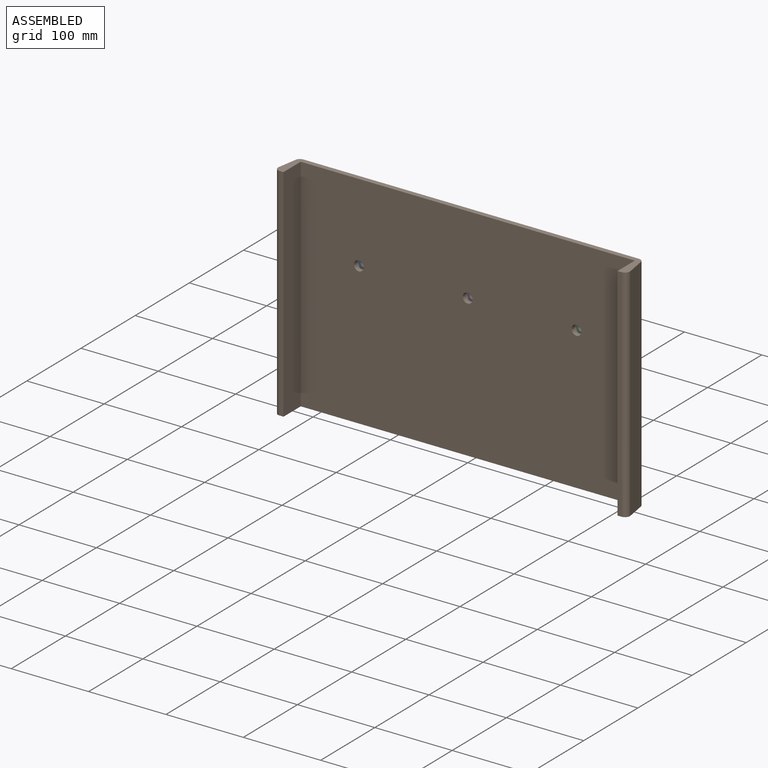
[diagram: assembled view]
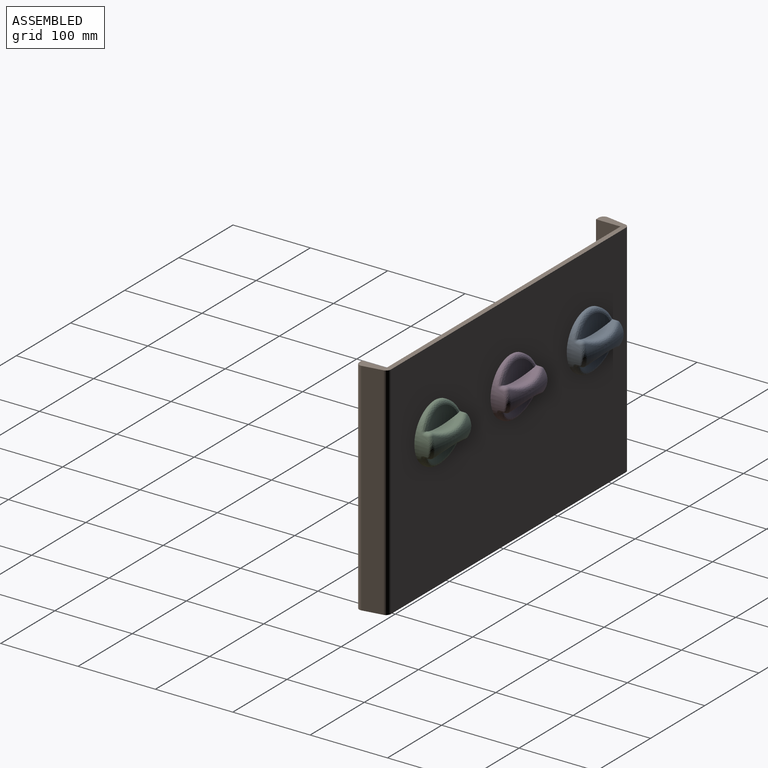
[diagram: assembled view, second angle]
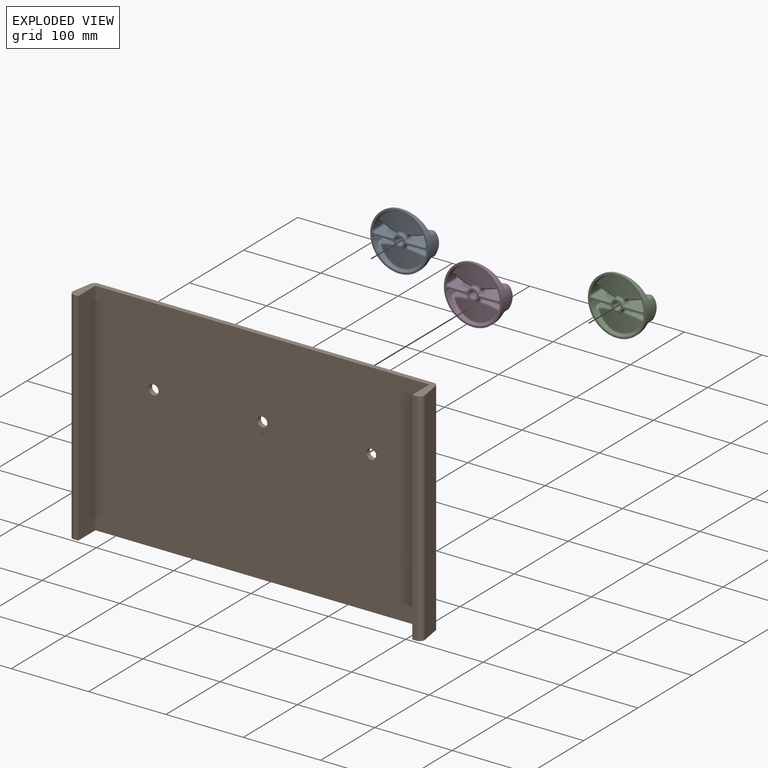
[diagram: exploded view]
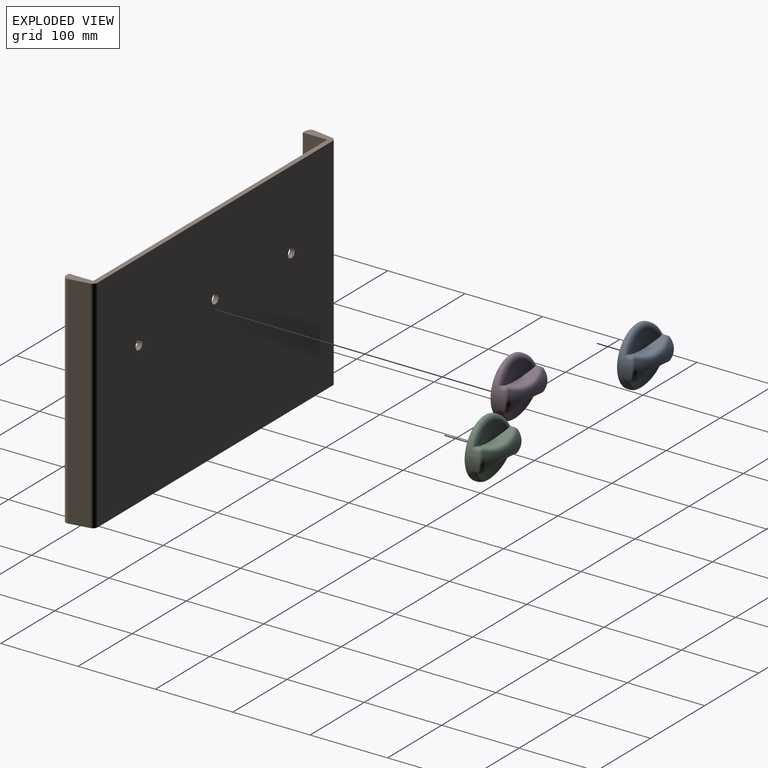
[diagram: exploded view, second angle]
ASSEMBLY  parts=4 mates=3
PART A: 111 faces, bbox 75x27.6x75 mm
  f0: cone r=5.08mm half-angle=1deg, axis (0,-1,0), area 750.3mm2, adj f1,f2,f3,f4
  f1: bspline ~3.75x0.49mm, area 0mm2, adj f0,f3
  f2: bspline ~3.75x0.49mm, area 0mm2, adj f0,f3
  f3: revolved ~9.3x8.54mm, area 55.8mm2, adj f0,f1,f2
  f4: plane 75.03x75.03mm, normal (0,-1,0), area 827.2mm2, adj f0,f5,f39,f40,f41,f42,f43,f44
  f5: cylinder r=2.54mm len=18.15mm, axis (-0.02,-1,0), area 77.8mm2, adj f4,f6,f39,f45
  f6: sphere r=2.54mm, area 11mm2, adj f5,f7,f38
  f7: bspline ~7.17x4.56mm, area 23.1mm2, adj f6,f8,f37,f39
  f8: revolved ~22.96x9.08mm, area 71.7mm2, adj f7,f9,f35,f38
  f9: bspline ~22.07x8.06mm, area 75.1mm2, adj f8,f10,f34,f37
  f10: cylinder r=76.2mm len=20.77mm, axis (0,1,0), area 204.3mm2, adj f9,f11,f32,f33
  f11: cylinder r=2.54mm len=4.95mm, axis (0,-1,0), area 20.8mm2, adj f10,f12,f37,f39
  f12: bspline ~5.19x4.91mm, area 23.3mm2, adj f11,f13,f33,f39
  f13: bspline ~62.65x20.61mm, area 319.2mm2, adj f12,f14,f31,f39
  f14: bspline ~5.19x4.91mm, area 23.3mm2, adj f13,f15,f30,f39
  f15: cylinder r=2.54mm len=5.02mm, axis (0,1,0), area 21.1mm2, adj f14,f16,f29,f39
  f16: sphere r=2.54mm, area 5.3mm2, adj f15,f17,f28
  f17: bspline ~7.17x4.56mm, area 23.1mm2, adj f16,f18,f27,f39
  f18: sphere r=2.54mm, area 11mm2, adj f17,f19,f40
  f19: bspline ~23.18x6.49mm, area 102.7mm2, adj f18,f20,f27,f41
  f20: sphere r=2.54mm, area 8.9mm2, adj f19,f21,f42
  f21: cylinder r=2.54mm len=2.61mm, axis (-0.9,0.15,0.4), area 0.9mm2, adj f20,f22,f27,f43
  f22: sphere r=2.54mm, area 11.5mm2, adj f21,f23,f28
  f23: cylinder r=2.54mm len=14.17mm, axis (0,1,0.02), area 67.6mm2, adj f22,f24,f29,f43
  f24: bspline ~5.74x5.52mm, area 27.6mm2, adj f23,f25,f30,f43
  f25: bspline ~9.26x3.41mm, area 32.1mm2, adj f24,f26,f31,f43
  f26: bspline ~5.74x5.52mm, area 27.6mm2, adj f25,f32,f33,f43
  f27: revolved ~22.96x9.08mm, area 71.7mm2, adj f17,f19,f21,f28
  f28: bspline ~22.07x8.06mm, area 75.1mm2, adj f16,f22,f27,f29
  f29: cylinder r=76.2mm len=20.77mm, axis (0,1,0), area 205.3mm2, adj f15,f23,f28,f30
  f30: bspline ~25.97x8.32mm, area 91.1mm2, adj f14,f24,f29,f31
  f31: cylinder r=110.92mm len=56.8mm, axis (1,0,0), area 916.2mm2, adj f13,f25,f30,f33
  f32: cylinder r=2.54mm len=14.15mm, axis (0,-1,0.02), area 67.5mm2, adj f10,f26,f34,f43
  f33: bspline ~25.31x8.26mm, area 91.1mm2, adj f10,f12,f26,f31
  f34: sphere r=2.54mm, area 11.5mm2, adj f9,f32,f35
  f35: bspline ~2.87x2.72mm, area 0.9mm2, adj f8,f34,f36,f43
  f36: sphere r=2.54mm, area 8.9mm2, adj f35,f38,f44
  f37: sphere r=2.54mm, area 5.3mm2, adj f7,f9,f11
  f38: bspline ~23.18x6.49mm, area 102.7mm2, adj f6,f8,f36,f45
  f39: cylinder r=34.92mm len=69.37mm, axis (0,1,0), area 580.9mm2, adj f4,f5,f7,f11,f12,f13,f14,f15
  f40: bspline ~18.26x3.18mm, area 77.8mm2, adj f4,f18,f39,f41
  f41: plane 22.77x21.6mm, normal (1,-0.02,0), area 455.7mm2, adj f4,f19,f40,f42
  f42: bspline ~21.58x2.61mm, area 64.3mm2, adj f4,f20,f41,f43
  f43: cone r=7.62mm half-angle=1deg, axis (0,1,0), area 59.6mm2, adj f4,f21,f23,f24,f25,f26,f32,f35
  f44: bspline ~21.73x2.61mm, area 64.3mm2, adj f4,f36,f43,f45
  f45: plane 22.77x21.6mm, normal (1,-0.02,0), area 455.7mm2, adj f4,f5,f38,f44
  f46: cylinder r=2.54mm len=18.15mm, axis (0.02,-1,0), area 77.8mm2, adj f4,f47,f80,f86
  f47: sphere r=2.54mm, area 11mm2, adj f46,f48,f79
  f48: bspline ~7.17x4.56mm, area 23.1mm2, adj f47,f49,f78,f80
  f49: revolved ~22.96x9.08mm, area 71.7mm2, adj f48,f50,f76,f79
  f50: bspline ~22.07x8.06mm, area 75.1mm2, adj f49,f51,f75,f78
  f51: cylinder r=76.2mm len=20.77mm, axis (0,1,0), area 205.3mm2, adj f50,f52,f73,f74
  f52: cylinder r=2.54mm len=5.02mm, axis (0,1,0), area 21.1mm2, adj f51,f53,f78,f80
  f53: bspline ~5.19x4.91mm, area 23.3mm2, adj f52,f54,f74,f80
  f54: bspline ~62.65x20.61mm, area 319.2mm2, adj f53,f55,f72,f80
  f55: bspline ~5.19x4.91mm, area 23.3mm2, adj f54,f56,f71,f80
  f56: cylinder r=2.54mm len=4.95mm, axis (0,-1,0), area 20.8mm2, adj f55,f57,f70,f80
  f57: sphere r=2.54mm, area 4.8mm2, adj f56,f58,f69
  f58: bspline ~7.17x4.56mm, area 23.1mm2, adj f57,f59,f68,f80
  f59: sphere r=2.54mm, area 11mm2, adj f58,f60,f81
  f60: bspline ~23.18x6.49mm, area 102.7mm2, adj f59,f61,f68,f82
  f61: sphere r=2.54mm, area 7.3mm2, adj f60,f62,f83
  f62: cylinder r=2.54mm len=2.61mm, axis (0.9,0.15,-0.4), area 0.9mm2, adj f61,f63,f68,f84
  f63: sphere r=2.54mm, area 12.3mm2, adj f62,f64,f69
  f64: cylinder r=2.54mm len=14.15mm, axis (0,1,-0.02), area 67.5mm2, adj f63,f65,f70,f84
  f65: bspline ~5.74x5.52mm, area 27.6mm2, adj f64,f66,f71,f84
  f66: bspline ~9.26x3.41mm, area 32.1mm2, adj f65,f67,f72,f84
  f67: bspline ~5.74x5.52mm, area 27.6mm2, adj f66,f73,f74,f84
  f68: revolved ~22.96x9.08mm, area 71.7mm2, adj f58,f60,f62,f69
  f69: bspline ~22.07x8.06mm, area 75.1mm2, adj f57,f63,f68,f70
  f70: cylinder r=76.2mm len=20.77mm, axis (0,1,0), area 204.4mm2, adj f56,f64,f69,f71
  f71: bspline ~25.97x8.32mm, area 91.1mm2, adj f55,f65,f70,f72
  f72: cylinder r=110.92mm len=56.8mm, axis (1,0,0), area 916.2mm2, adj f54,f66,f71,f74
  f73: cylinder r=2.54mm len=14.17mm, axis (0,-1,-0.02), area 67.6mm2, adj f51,f67,f75,f84
  f74: bspline ~25.97x8.32mm, area 91.1mm2, adj f51,f53,f67,f72
  f75: sphere r=2.54mm, area 12.3mm2, adj f50,f73,f76
  f76: bspline ~2.87x2.72mm, area 0.9mm2, adj f49,f75,f77,f84
  f77: sphere r=2.54mm, area 8.1mm2, adj f76,f79,f85
  f78: sphere r=2.54mm, area 4.8mm2, adj f48,f50,f52
  f79: bspline ~23.18x6.49mm, area 102.7mm2, adj f47,f49,f77,f86
  f80: cylinder r=34.92mm len=69.37mm, axis (0,1,0), area 580.9mm2, adj f4,f46,f48,f52,f53,f54,f55,f56
  f81: bspline ~18.26x3.18mm, area 77.8mm2, adj f4,f59,f80,f82
  f82: plane 22.77x21.6mm, normal (-1,-0.02,0), area 455.7mm2, adj f4,f60,f81,f83
  f83: bspline ~21.58x2.61mm, area 64.3mm2, adj f4,f61,f82,f84
  f84: cone r=7.62mm half-angle=1deg, axis (0,1,0), area 59.6mm2, adj f4,f62,f64,f65,f66,f67,f73,f76
  f85: bspline ~21.73x2.61mm, area 64.3mm2, adj f4,f77,f84,f86
  f86: plane 22.77x21.6mm, normal (-1,-0.02,0), area 455.7mm2, adj f4,f46,f79,f85
  f87: cylinder r=37.46mm len=74.93mm, axis (0,1,0), area 1566.9mm2, adj f4,f88,f100,f101,f102,f103,f104,f105
  f88: cylinder r=5.08mm len=6.82mm, axis (0,1,0), area 42.2mm2, adj f87,f89,f98,f100
  f89: sphere r=5.08mm, area 21.2mm2, adj f88,f90,f110
  f90: bspline ~63.79x11.03mm, area 434mm2, adj f89,f91,f97,f98
  f91: revolved ~63.79x29.26mm, area 958.5mm2, adj f90,f92,f104,f110
  f92: bspline ~63.79x11.03mm, area 434mm2, adj f91,f93,f95,f96
  f93: cylinder r=73.66mm len=57.59mm, axis (0,1,0), area 696.6mm2, adj f92,f94,f105,f106,f108,f109
  f94: cylinder r=108.38mm len=55.5mm, axis (1,0,0), area 926.7mm2, adj f93,f107
  f95: sphere r=5.08mm, area 19.1mm2, adj f92,f104,f105
  f96: sphere r=5.08mm, area 19.1mm2, adj f92,f109,f110
  f97: sphere r=5.08mm, area 21.2mm2, adj f90,f103,f104
  f98: cylinder r=73.66mm len=57.59mm, axis (0,1,0), area 696.6mm2, adj f88,f90,f99,f100,f102,f103
  f99: cylinder r=108.38mm len=55.5mm, axis (1,0,0), area 926.8mm2, adj f98,f101
  f100: bspline ~7.9x5.19mm, area 25.9mm2, adj f87,f88,f98,f101
  f101: bspline ~67.21x23.15mm, area 663.7mm2, adj f87,f99,f100,f102
  f102: bspline ~7.86x5.19mm, area 25.9mm2, adj f87,f98,f101,f103
  f103: cylinder r=5.08mm len=6.81mm, axis (0,-1,0), area 41.7mm2, adj f87,f97,f98,f102
  f104: bspline ~26.32x7.49mm, area 172.1mm2, adj f87,f91,f95,f97
  f105: cylinder r=5.08mm len=6.81mm, axis (0,-1,0), area 41.7mm2, adj f87,f93,f95,f106
  f106: bspline ~7.86x5.19mm, area 25.9mm2, adj f87,f93,f105,f107
  f107: bspline ~67.21x23.15mm, area 663.7mm2, adj f87,f94,f106,f108
  f108: bspline ~7.85x6.37mm, area 25.9mm2, adj f87,f93,f107,f109
  f109: cylinder r=5.08mm len=6.81mm, axis (0,1,0), area 42.2mm2, adj f87,f93,f96,f108
  f110: bspline ~26.32x7.49mm, area 172.1mm2, adj f87,f89,f91,f96
PART B: 17 faces, bbox 454.9x38.1x285.8 mm
  f0: cylinder r=6.35mm len=12.7mm, axis (0,1,0), area 253.4mm2, adj f5,f11
  f1: cylinder r=6.35mm len=12.7mm, axis (0,1,0), area 253.4mm2, adj f5,f11
  f2: cylinder r=6.35mm len=12.7mm, axis (0,1,0), area 253.4mm2, adj f5,f11
  f3: cylinder r=6.35mm len=285.75mm, axis (0,0,-1), area 3149.9mm2, adj f13,f14,f15,f16
  f4: plane 285.75x31.75mm, normal (1,0,0), area 9072.6mm2, adj f5,f14,f15,f16
  f5: plane 431.8x285.75mm, normal (0,-1,0), area 123006.8mm2, adj f0,f1,f2,f4,f6,f15,f16
  f6: plane 285.75x31.75mm, normal (-1,0,0), area 9072.6mm2, adj f5,f7,f15,f16
  f7: plane 285.75x5.2mm, normal (0,-1,0), area 1487.1mm2, adj f6,f8,f15,f16
  f8: cylinder r=6.35mm len=285.75mm, axis (0,0,-1), area 3149.9mm2, adj f7,f9,f15,f16
  f9: plane 285.75x25.4mm, normal (0.99,0.16,0), area 7358.2mm2, adj f8,f10,f15,f16
  f10: cylinder r=6.35mm len=285.75mm, axis (0,0,-1), area 2550.6mm2, adj f9,f11,f15,f16
  f11: plane 433.74x285.75mm, normal (0,1,0), area 123561.6mm2, adj f0,f1,f2,f10,f12,f15,f16
  f12: cylinder r=6.35mm len=285.75mm, axis (0,0,-1), area 2550.6mm2, adj f11,f13,f15,f16
  f13: plane 285.75x25.4mm, normal (-0.99,0.16,0), area 7358.2mm2, adj f3,f12,f15,f16
  f14: plane 285.75x5.2mm, normal (0,-1,0), area 1487.1mm2, adj f3,f4,f15,f16
  f15: plane 454.91x38.1mm, normal (0,0,1), area 3430.9mm2, adj f3,f4,f5,f6,f7,f8,f9,f10
  f16: plane 454.91x38.1mm, normal (0,0,-1), area 3430.9mm2, adj f3,f4,f5,f6,f7,f8,f9,f10
PART C: same geometry as A
PART D: same geometry as A
PLACE A rot(axis=(0,-1,0),90deg) t=(-140.67,9.35,184.15)mm
PLACE B at identity
PLACE C rot(axis=(0,-1,0),90deg) t=(140.67,9.35,184.15)mm
PLACE D rot(axis=(0,-1,0),90deg) t=(0,9.35,184.15)mm
MATE revolute C.f0 <-> B.f0  axis (0,-1,0) through (140.67,9.35,184.15)mm
MATE revolute D.f0 <-> B.f1  axis (0,-1,0) through (0,9.35,184.15)mm
MATE revolute A.f0 <-> B.f2  axis (0,-1,0) through (-140.67,9.35,184.15)mm
